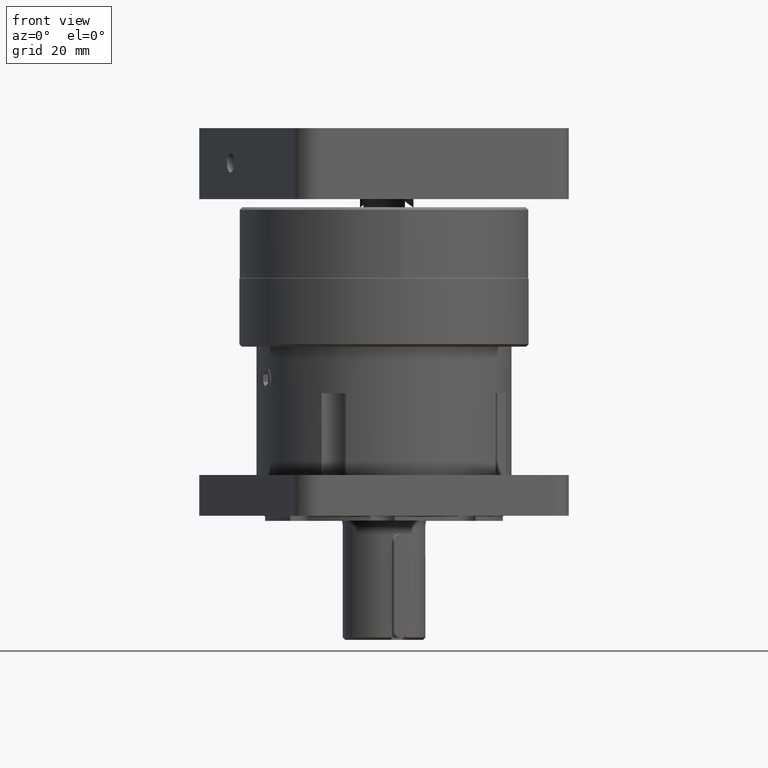
[diagram: clean part render]
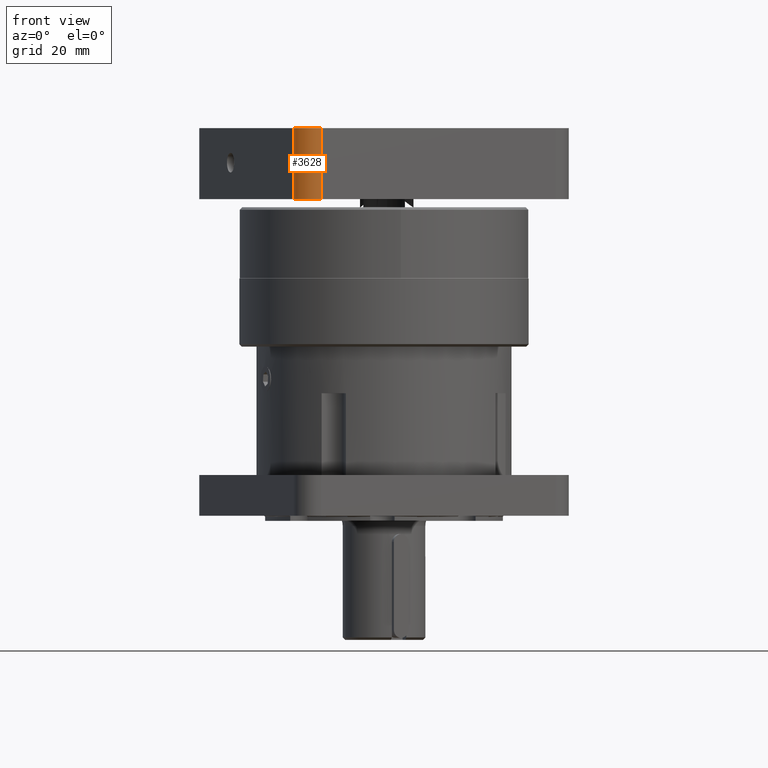
[diagram: same view with one face highlighted and labeled with its STEP entity id]
A machine part, front view. The second image highlights one B-rep face of the part: STEP entity #3628.
In plain terms, the highlighted cylindrical surface (edge-blend (fillet) strip) has radius 6.4262 mm, axis along (0, 0, -1).
Its self-contained STEP definition (entity closure, byte-faithful):
#366 = VECTOR ( 'NONE', #16499, 1000.000000000000000 ) ;
#1944 = CARTESIAN_POINT ( 'NONE',  ( -126.3793541215416951, 83.45631206331738383, 195.6755539304239733 ) ) ;
#2469 = EDGE_CURVE ( 'NONE', #6835, #6458, #13922, .T. ) ;
#2726 = CIRCLE ( 'NONE', #6657, 6.426199999999995249 ) ;
#2983 = CYLINDRICAL_SURFACE ( 'NONE', #4475, 6.426200000000008572 ) ;
#3170 = CARTESIAN_POINT ( 'NONE',  ( -124.0037640304990703, 77.48533072359276730, 198.1823539304238579 ) ) ;
#3628 = ADVANCED_FACE ( 'NONE', ( #6840 ), #2983, .T. ) ;
#3719 = CARTESIAN_POINT ( 'NONE',  ( -124.0037640304992692, 77.48533072359255414, 219.9211539304238556 ) ) ;
#3848 = DIRECTION ( 'NONE',  ( -1.245299915137200224E-14, -1.076898747066003711E-14, 1.000000000000000000 ) ) ;
#3921 = CARTESIAN_POINT ( 'NONE',  ( -132.3503354612664111, 81.08072197227463107, 198.1823539304238011 ) ) ;
#4415 = CARTESIAN_POINT ( 'NONE',  ( -126.3793541215417804, 83.45631206331734120, 198.1823539304239432 ) ) ;
#4475 = AXIS2_PLACEMENT_3D ( 'NONE', #1944, #8677, #11119 ) ;
#4925 = CARTESIAN_POINT ( 'NONE',  ( -126.3793541215420220, 83.45631206331712804, 219.9211539304239693 ) ) ;
#5335 = ORIENTED_EDGE ( 'NONE', *, *, #10458, .F. ) ;
#5670 = DIRECTION ( 'NONE',  ( 0.3696726045007533434, -0.9291620770789290606, -4.319127262710300591E-15 ) ) ;
#5723 = DIRECTION ( 'NONE',  ( 1.245299915137200224E-14, 1.076898747066003711E-14, -1.000000000000000000 ) ) ;
#5757 = VECTOR ( 'NONE', #12258, 1000.000000000000000 ) ;
#6458 = VERTEX_POINT ( 'NONE', #7704 ) ;
#6657 = AXIS2_PLACEMENT_3D ( 'NONE', #4415, #5723, #5670 ) ;
#6835 = VERTEX_POINT ( 'NONE', #3921 ) ;
#6840 = FACE_OUTER_BOUND ( 'NONE', #14595, .T. ) ;
#6957 = CIRCLE ( 'NONE', #10223, 6.426200000000001467 ) ;
#7117 = CARTESIAN_POINT ( 'NONE',  ( -124.0037640304989850, 77.48533072359276730, 195.6755539304238880 ) ) ;
#7276 = EDGE_CURVE ( 'NONE', #6458, #10543, #6957, .T. ) ;
#7704 = CARTESIAN_POINT ( 'NONE',  ( -132.3503354612666669, 81.08072197227440370, 219.9211539304237988 ) ) ;
#8677 = DIRECTION ( 'NONE',  ( 1.245299915137200224E-14, 1.076898747066003711E-14, -1.000000000000000000 ) ) ;
#8699 = ORIENTED_EDGE ( 'NONE', *, *, #16619, .F. ) ;
#8920 = CARTESIAN_POINT ( 'NONE',  ( -132.3503354612666669, 81.08072197227440370, 219.9211539304237988 ) ) ;
#10223 = AXIS2_PLACEMENT_3D ( 'NONE', #4925, #3848, #11459 ) ;
#10458 = EDGE_CURVE ( 'NONE', #10543, #16574, #10604, .T. ) ;
#10543 = VERTEX_POINT ( 'NONE', #3719 ) ;
#10604 = LINE ( 'NONE', #7117, #5757 ) ;
#11119 = DIRECTION ( 'NONE',  ( 0.3696726045007525663, -0.9291620770789292827, -4.319127262710291913E-15 ) ) ;
#11459 = DIRECTION ( 'NONE',  ( 0.3696726045007444061, -0.9291620770789326134, -4.319127262710296646E-15 ) ) ;
#11742 = ORIENTED_EDGE ( 'NONE', *, *, #2469, .F. ) ;
#12258 = DIRECTION ( 'NONE',  ( 1.245299915137200224E-14, 1.076898747066003711E-14, -1.000000000000000000 ) ) ;
#12857 = ORIENTED_EDGE ( 'NONE', *, *, #7276, .F. ) ;
#13922 = LINE ( 'NONE', #8920, #366 ) ;
#14595 = EDGE_LOOP ( 'NONE', ( #11742, #8699, #5335, #12857 ) ) ;
#16499 = DIRECTION ( 'NONE',  ( -1.245299915137200224E-14, -1.076898747066003711E-14, 1.000000000000000000 ) ) ;
#16574 = VERTEX_POINT ( 'NONE', #3170 ) ;
#16619 = EDGE_CURVE ( 'NONE', #16574, #6835, #2726, .T. ) ;